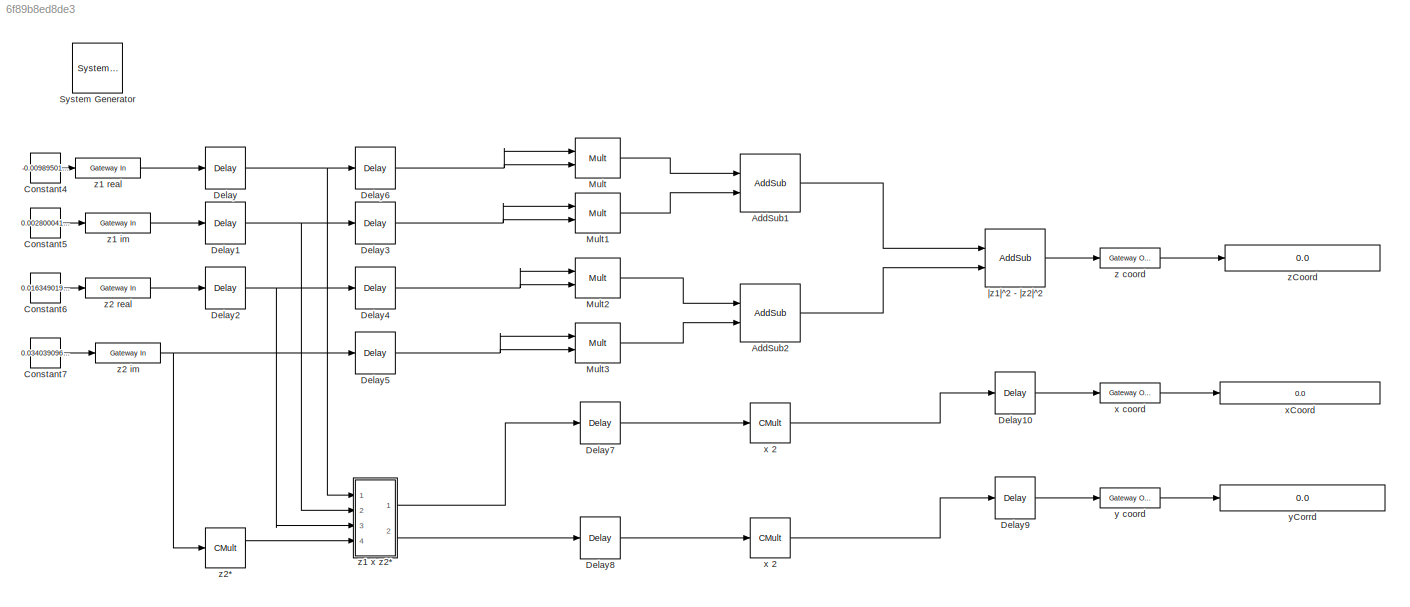
MODEL slx_6f89b8ed8de3
KIND model
CONFIG AbsTol = auto
CONFIG EnableMultiTasking = off
CONFIG FixedStep = auto
CONFIG MaxStep = auto
CONFIG MinStep = auto
CONFIG RelTol = 1e-3
CONFIG SampleTimeConstraint = Unconstrained
CONFIG Solver = VariableStepAuto
CONFIG SolverName = VariableStepAuto
CONFIG StartTime = 0.0
CONFIG StopTime = 25/1e5
BLOCK [Reference]  System Generator  REF=xbsIndex_r4/ System Generator
  AttributesFormatString = System\nGenerator
  Ports = []
  SourceBlock = xbsIndex_r4/ System Generator
  SourceType = Xilinx System Generator Block
  Tag = genX
  UserDataPersistent = on
BLOCK [Reference]  x 2  REF=xbsIndex_r4/CMult
  Ports = [1, 1]
  SourceBlock = xbsIndex_r4/CMult
  SourceType = Xilinx Constant Multiplier Block
BLOCK [Reference] AddSub1  REF=xbsIndex_r4/AddSub
  Ports = [2, 1]
  SourceBlock = xbsIndex_r4/AddSub
  SourceType = Xilinx Adder/Subtracter Block
BLOCK [Reference] AddSub2  REF=xbsIndex_r4/AddSub
  Ports = [2, 1]
  SourceBlock = xbsIndex_r4/AddSub
  SourceType = Xilinx Adder/Subtracter Block
BLOCK [Constant] Constant4
  Value = -0.009895012334566937
BLOCK [Constant] Constant5
  Value = 0.0028000410631779356
BLOCK [Constant] Constant6
  Value = 0.016349019873847796
BLOCK [Constant] Constant7
  Value = 0.03403909616682902
BLOCK [Reference] Delay  REF=xbsIndex_r4/Delay
  Ports = [1, 1]
  SourceBlock = xbsIndex_r4/Delay
  SourceType = Xilinx Delay Block
BLOCK [Reference] Delay1  REF=xbsIndex_r4/Delay
  Ports = [1, 1]
  SourceBlock = xbsIndex_r4/Delay
  SourceType = Xilinx Delay Block
BLOCK [Reference] Delay10  REF=xbsIndex_r4/Delay
  Ports = [1, 1]
  SourceBlock = xbsIndex_r4/Delay
  SourceType = Xilinx Delay Block
BLOCK [Reference] Delay2  REF=xbsIndex_r4/Delay
  Ports = [1, 1]
  SourceBlock = xbsIndex_r4/Delay
  SourceType = Xilinx Delay Block
BLOCK [Reference] Delay3  REF=xbsIndex_r4/Delay
  Ports = [1, 1]
  SourceBlock = xbsIndex_r4/Delay
  SourceType = Xilinx Delay Block
BLOCK [Reference] Delay4  REF=xbsIndex_r4/Delay
  Ports = [1, 1]
  SourceBlock = xbsIndex_r4/Delay
  SourceType = Xilinx Delay Block
BLOCK [Reference] Delay5  REF=xbsIndex_r4/Delay
  Ports = [1, 1]
  SourceBlock = xbsIndex_r4/Delay
  SourceType = Xilinx Delay Block
BLOCK [Reference] Delay6  REF=xbsIndex_r4/Delay
  Ports = [1, 1]
  SourceBlock = xbsIndex_r4/Delay
  SourceType = Xilinx Delay Block
BLOCK [Reference] Delay7  REF=xbsIndex_r4/Delay
  Ports = [1, 1]
  SourceBlock = xbsIndex_r4/Delay
  SourceType = Xilinx Delay Block
BLOCK [Reference] Delay8  REF=xbsIndex_r4/Delay
  Ports = [1, 1]
  SourceBlock = xbsIndex_r4/Delay
  SourceType = Xilinx Delay Block
BLOCK [Reference] Delay9  REF=xbsIndex_r4/Delay
  Ports = [1, 1]
  SourceBlock = xbsIndex_r4/Delay
  SourceType = Xilinx Delay Block
BLOCK [Reference] Mult  REF=xbsIndex_r4/Mult
  Ports = [2, 1]
  SourceBlock = xbsIndex_r4/Mult
  SourceType = Xilinx Multiplier Block
BLOCK [Reference] Mult1  REF=xbsIndex_r4/Mult
  Ports = [2, 1]
  SourceBlock = xbsIndex_r4/Mult
  SourceType = Xilinx Multiplier Block
BLOCK [Reference] Mult2  REF=xbsIndex_r4/Mult
  Ports = [2, 1]
  SourceBlock = xbsIndex_r4/Mult
  SourceType = Xilinx Multiplier Block
BLOCK [Reference] Mult3  REF=xbsIndex_r4/Mult
  Ports = [2, 1]
  SourceBlock = xbsIndex_r4/Mult
  SourceType = Xilinx Multiplier Block
BLOCK [Reference] x 2  REF=xbsIndex_r4/CMult
  Ports = [1, 1]
  SourceBlock = xbsIndex_r4/CMult
  SourceType = Xilinx Constant Multiplier Block
BLOCK [Reference] x coord  REF=xbsIndex_r4/Gateway Out
  Ports = [1, 1]
  SourceBlock = xbsIndex_r4/Gateway Out
  SourceType = Xilinx Gateway Out Block
BLOCK [Display] xCoord
  Decimation = 1
  Format = long
  Ports = [1]
BLOCK [Reference] y coord  REF=xbsIndex_r4/Gateway Out
  Ports = [1, 1]
  SourceBlock = xbsIndex_r4/Gateway Out
  SourceType = Xilinx Gateway Out Block
BLOCK [Display] yCorrd
  Decimation = 1
  Format = long
  Ports = [1]
BLOCK [Reference] z coord  REF=xbsIndex_r4/Gateway Out
  Ports = [1, 1]
  SourceBlock = xbsIndex_r4/Gateway Out
  SourceType = Xilinx Gateway Out Block
BLOCK [Reference] z1 im  REF=xbsIndex_r4/Gateway In
  Ports = [1, 1]
  SourceBlock = xbsIndex_r4/Gateway In
  SourceType = Xilinx Gateway In Block
BLOCK [Reference] z1 real  REF=xbsIndex_r4/Gateway In
  Ports = [1, 1]
  SourceBlock = xbsIndex_r4/Gateway In
  SourceType = Xilinx Gateway In Block
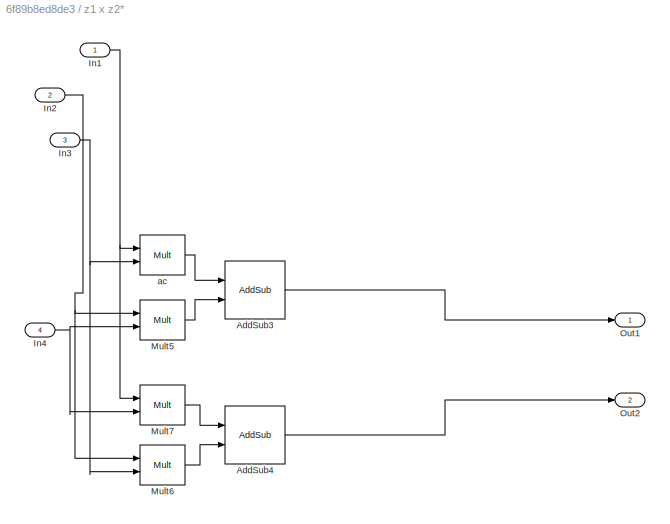
BLOCK [SubSystem] z1 x z2*
  Ports = [4, 2]
  RequestExecContextInheritance = off
BLOCK [Reference] z1 x z2*/AddSub3  REF=xbsIndex_r4/AddSub
  Ports = [2, 1]
  SourceBlock = xbsIndex_r4/AddSub
  SourceType = Xilinx Adder/Subtracter Block
BLOCK [Reference] z1 x z2*/AddSub4  REF=xbsIndex_r4/AddSub
  Ports = [2, 1]
  SourceBlock = xbsIndex_r4/AddSub
  SourceType = Xilinx Adder/Subtracter Block
BLOCK [Inport] z1 x z2*/In1
BLOCK [Inport] z1 x z2*/In2
  Port = 2
BLOCK [Inport] z1 x z2*/In3
  Port = 3
BLOCK [Inport] z1 x z2*/In4
  Port = 4
BLOCK [Reference] z1 x z2*/Mult5  REF=xbsIndex_r4/Mult
  Ports = [2, 1]
  SourceBlock = xbsIndex_r4/Mult
  SourceType = Xilinx Multiplier Block
BLOCK [Reference] z1 x z2*/Mult6  REF=xbsIndex_r4/Mult
  Ports = [2, 1]
  SourceBlock = xbsIndex_r4/Mult
  SourceType = Xilinx Multiplier Block
BLOCK [Reference] z1 x z2*/Mult7  REF=xbsIndex_r4/Mult
  Ports = [2, 1]
  SourceBlock = xbsIndex_r4/Mult
  SourceType = Xilinx Multiplier Block
BLOCK [Outport] z1 x z2*/Out1
BLOCK [Outport] z1 x z2*/Out2
  Port = 2
BLOCK [Reference] z1 x z2*/ac  REF=xbsIndex_r4/Mult
  Ports = [2, 1]
  SourceBlock = xbsIndex_r4/Mult
  SourceType = Xilinx Multiplier Block
BLOCK [Reference] z2 im  REF=xbsIndex_r4/Gateway In
  Ports = [1, 1]
  SourceBlock = xbsIndex_r4/Gateway In
  SourceType = Xilinx Gateway In Block
BLOCK [Reference] z2 real  REF=xbsIndex_r4/Gateway In
  Ports = [1, 1]
  SourceBlock = xbsIndex_r4/Gateway In
  SourceType = Xilinx Gateway In Block
BLOCK [Reference] z2*  REF=xbsIndex_r4/CMult
  Ports = [1, 1]
  SourceBlock = xbsIndex_r4/CMult
  SourceType = Xilinx Constant Multiplier Block
BLOCK [Display] zCoord
  Decimation = 1
  Format = long
  Ports = [1]
BLOCK [Reference] |z1|^2 - |z2|^2  REF=xbsIndex_r4/AddSub
  Ports = [2, 1]
  SourceBlock = xbsIndex_r4/AddSub
  SourceType = Xilinx Adder/Subtracter Block
LINE  x 2:1 -> Delay10:1
LINE AddSub1:1 -> |z1|^2 - |z2|^2:1
LINE AddSub2:1 -> |z1|^2 - |z2|^2:2
LINE Constant4:1 -> z1 real:1
LINE Constant5:1 -> z1 im:1
LINE Constant6:1 -> z2 real:1
LINE Constant7:1 -> z2 im:1
LINE Delay10:1 -> x coord:1
NET Delay1:1 -> Delay3:1, z1 x z2*:2
NET Delay2:1 -> Delay4:1, z1 x z2*:3
NET Delay3:1 -> Mult1:1, Mult1:2
NET Delay4:1 -> Mult2:1, Mult2:2
NET Delay5:1 -> Mult3:1, Mult3:2
NET Delay6:1 -> Mult:1, Mult:2
LINE Delay7:1 ->  x 2:1
LINE Delay8:1 -> x 2:1
LINE Delay9:1 -> y coord:1
NET Delay:1 -> Delay6:1, z1 x z2*:1
LINE Mult1:1 -> AddSub1:2
LINE Mult2:1 -> AddSub2:1
LINE Mult3:1 -> AddSub2:2
LINE Mult:1 -> AddSub1:1
LINE x 2:1 -> Delay9:1
LINE x coord:1 -> xCoord:1
LINE y coord:1 -> yCorrd:1
LINE z coord:1 -> zCoord:1
LINE z1 im:1 -> Delay1:1
LINE z1 real:1 -> Delay:1
LINE z1 x z2*/AddSub3:1 -> z1 x z2*/Out1:1
LINE z1 x z2*/AddSub4:1 -> z1 x z2*/Out2:1
NET z1 x z2*/In1:1 -> z1 x z2*/Mult7:1, z1 x z2*/ac:1
NET z1 x z2*/In2:1 -> z1 x z2*/Mult5:1, z1 x z2*/Mult6:1
NET z1 x z2*/In3:1 -> z1 x z2*/Mult6:2, z1 x z2*/ac:2
NET z1 x z2*/In4:1 -> z1 x z2*/Mult5:2, z1 x z2*/Mult7:2
LINE z1 x z2*/Mult5:1 -> z1 x z2*/AddSub3:2
LINE z1 x z2*/Mult6:1 -> z1 x z2*/AddSub4:2
LINE z1 x z2*/Mult7:1 -> z1 x z2*/AddSub4:1
LINE z1 x z2*/ac:1 -> z1 x z2*/AddSub3:1
LINE z1 x z2*:1 -> Delay7:1
LINE z1 x z2*:2 -> Delay8:1
NET z2 im:1 -> Delay5:1, z2*:1
LINE z2 real:1 -> Delay2:1
LINE z2*:1 -> z1 x z2*:4
LINE |z1|^2 - |z2|^2:1 -> z coord:1
note: NET lines group one-source signal fan-out (src -> all destinations, sorted); 1:1 wires keep LINE
